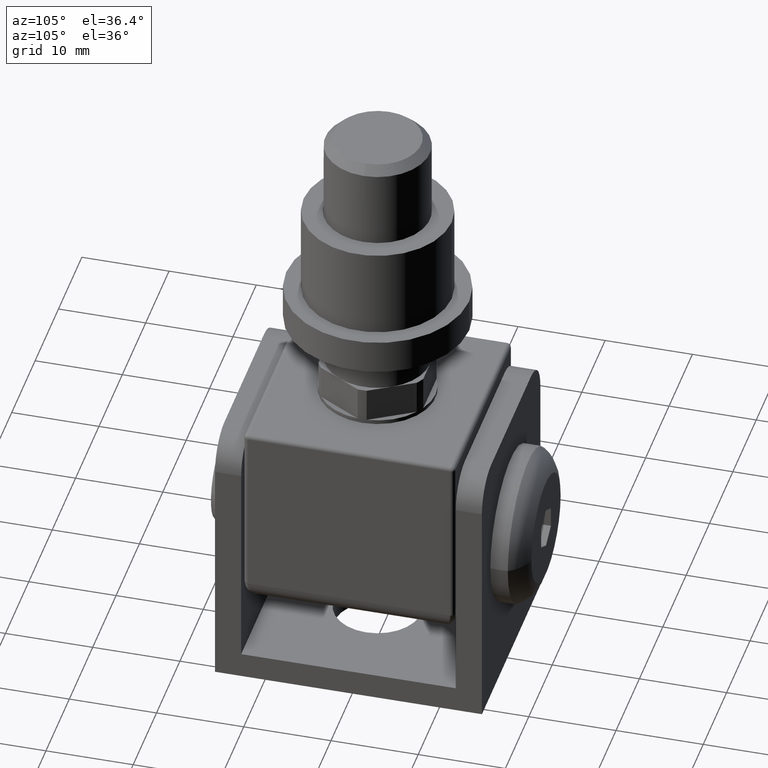
[diagram: clean part render]
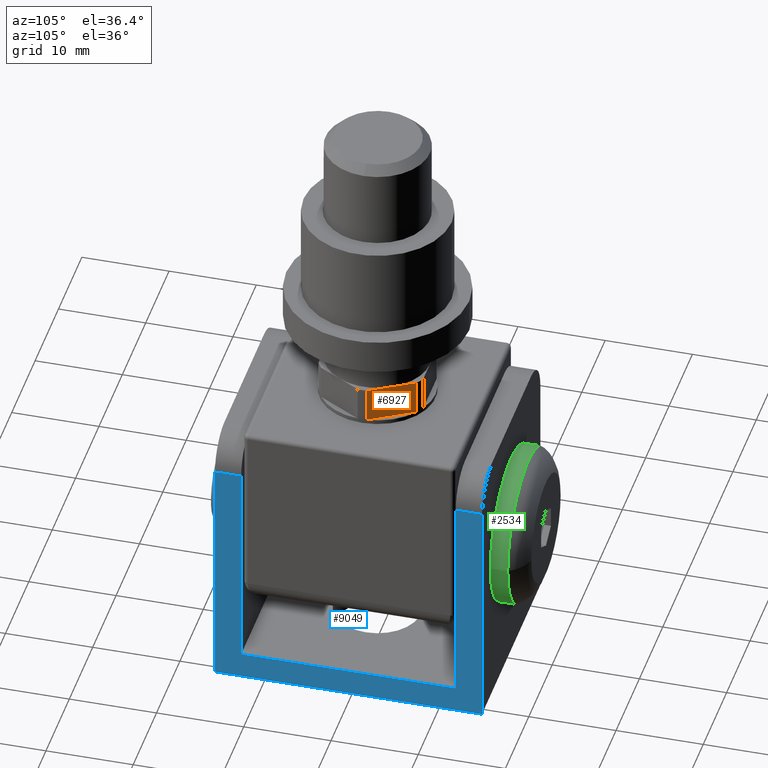
[diagram: same view with three faces highlighted in distinct colors, each labeled with its STEP entity id]
A machine part, auxiliary view with three faces highlighted in distinct colors.
Their STEP definitions:

[orange] entity #6927 — the highlighted planar face has unit normal (-0.866, -0.5, 0).
#44 = DIRECTION ( 'NONE',  ( -0.000000000000000000, -0.000000000000000000, -1.000000000000000000 ) ) ;
#452 = ORIENTED_EDGE ( 'NONE', *, *, #1431, .T. ) ;
#1431 = EDGE_CURVE ( 'NONE', #5759, #10713, #8987, .T. ) ;
#1654 = EDGE_CURVE ( 'NONE', #9571, #5188, #4895, .T. ) ;
#2066 = DIRECTION ( 'NONE',  ( -0.5000000000000002220, 0.8660254037844384856, 0.000000000000000000 ) ) ;
#2094 = CARTESIAN_POINT ( 'NONE',  ( 6.629897518600597728, 0.5166806488089423777, 15.89999999999999680 ) ) ;
#2750 = EDGE_LOOP ( 'NONE', ( #11919, #3646, #14376, #8058, #452 ) ) ;
#2832 = CARTESIAN_POINT ( 'NONE',  ( 3.762407326812664543, 5.483319351191062729, 11.90000000000000213 ) ) ;
#3067 = DIRECTION ( 'NONE',  ( -0.000000000000000000, -0.000000000000000000, -1.000000000000000000 ) ) ;
#3108 = DIRECTION ( 'NONE',  ( -0.8660254037844385966, -0.5000000000000003331, 0.000000000000000000 ) ) ;
#3255 = LINE ( 'NONE', #4348, #7144 ) ;
#3346 = EDGE_CURVE ( 'NONE', #5759, #9571, #3255, .T. ) ;
#3646 = ORIENTED_EDGE ( 'NONE', *, *, #14854, .F. ) ;
#3821 = FACE_OUTER_BOUND ( 'NONE', #2750, .T. ) ;
#3829 = AXIS2_PLACEMENT_3D ( 'NONE', #10245, #3108, #13799 ) ;
#3991 = VERTEX_POINT ( 'NONE', #2832 ) ;
#4348 = CARTESIAN_POINT ( 'NONE',  ( 6.629897518600597728, 0.5166806488089423777, 15.89999999999999680 ) ) ;
#4792 = VECTOR ( 'NONE', #6528, 1000.000000000000227 ) ;
#4895 = LINE ( 'NONE', #8333, #15267 ) ;
#5188 = VERTEX_POINT ( 'NONE', #9902 ) ;
#5447 = CARTESIAN_POINT ( 'NONE',  ( 5.196152422706631135, 3.000000000000001776, 15.89999999999999680 ) ) ;
#5759 = VERTEX_POINT ( 'NONE', #2094 ) ;
#6528 = DIRECTION ( 'NONE',  ( -0.5000000000000002220, 0.8660254037844384856, 0.000000000000000000 ) ) ;
#6927 = ADVANCED_FACE ( 'NONE', ( #3821 ), #11314, .F. ) ;
#7009 = LINE ( 'NONE', #10073, #4792 ) ;
#7144 = VECTOR ( 'NONE', #13920, 1000.000000000000227 ) ;
#8058 = ORIENTED_EDGE ( 'NONE', *, *, #3346, .F. ) ;
#8209 = CARTESIAN_POINT ( 'NONE',  ( 6.629897518600597728, 0.5166806488089408234, 11.90000000000000213 ) ) ;
#8333 = CARTESIAN_POINT ( 'NONE',  ( 6.629897518600597728, 0.5166806488089423777, 15.89999999999999680 ) ) ;
#8987 = LINE ( 'NONE', #12781, #11929 ) ;
#9571 = VERTEX_POINT ( 'NONE', #5447 ) ;
#9902 = CARTESIAN_POINT ( 'NONE',  ( 3.762407326812664987, 5.483319351191061841, 15.89999999999999680 ) ) ;
#10034 = EDGE_CURVE ( 'NONE', #10713, #3991, #7009, .T. ) ;
#10073 = CARTESIAN_POINT ( 'NONE',  ( 6.629897518600597728, 0.5166806488089423777, 11.90000000000000213 ) ) ;
#10245 = CARTESIAN_POINT ( 'NONE',  ( 6.629897518600597728, 0.5166806488089423777, 15.89999999999999680 ) ) ;
#10713 = VERTEX_POINT ( 'NONE', #8209 ) ;
#11041 = VECTOR ( 'NONE', #44, 1000.000000000000000 ) ;
#11314 = PLANE ( 'NONE',  #3829 ) ;
#11919 = ORIENTED_EDGE ( 'NONE', *, *, #10034, .T. ) ;
#11929 = VECTOR ( 'NONE', #3067, 1000.000000000000000 ) ;
#12781 = CARTESIAN_POINT ( 'NONE',  ( 6.629897518600597728, 0.5166806488089423777, 15.89999999999999680 ) ) ;
#12958 = CARTESIAN_POINT ( 'NONE',  ( 3.762407326812664987, 5.483319351191061841, 15.89999999999999680 ) ) ;
#13799 = DIRECTION ( 'NONE',  ( 0.5000000000000002220, -0.8660254037844384856, 0.000000000000000000 ) ) ;
#13920 = DIRECTION ( 'NONE',  ( -0.5000000000000002220, 0.8660254037844384856, 0.000000000000000000 ) ) ;
#14376 = ORIENTED_EDGE ( 'NONE', *, *, #1654, .F. ) ;
#14854 = EDGE_CURVE ( 'NONE', #5188, #3991, #15119, .T. ) ;
#15119 = LINE ( 'NONE', #12958, #11041 ) ;
#15267 = VECTOR ( 'NONE', #2066, 1000.000000000000227 ) ;

[blue] entity #9049 — the highlighted planar face has unit normal (-1, 0, 0).
#22 = CARTESIAN_POINT ( 'NONE',  ( 12.50000000000000000, 12.30000000000000249, 11.75000000000000355 ) ) ;
#438 = DIRECTION ( 'NONE',  ( -0.000000000000000000, -0.000000000000000000, 1.000000000000000000 ) ) ;
#570 = DIRECTION ( 'NONE',  ( -0.000000000000000000, -1.000000000000000000, -0.000000000000000000 ) ) ;
#623 = CARTESIAN_POINT ( 'NONE',  ( 12.50000000000000000, -15.29999999999999716, -15.75000000000000000 ) ) ;
#695 = DIRECTION ( 'NONE',  ( 0.000000000000000000, 0.000000000000000000, 1.000000000000000000 ) ) ;
#1082 = ORIENTED_EDGE ( 'NONE', *, *, #4791, .T. ) ;
#1148 = FACE_OUTER_BOUND ( 'NONE', #8807, .T. ) ;
#1263 = CARTESIAN_POINT ( 'NONE',  ( 12.50000000000000000, 0.000000000000000000, 11.74999999999999645 ) ) ;
#1347 = VECTOR ( 'NONE', #9046, 1000.000000000000000 ) ;
#1404 = VECTOR ( 'NONE', #438, 1000.000000000000000 ) ;
#1889 = LINE ( 'NONE', #10921, #15256 ) ;
#2367 = EDGE_CURVE ( 'NONE', #14938, #7382, #12076, .T. ) ;
#2685 = CARTESIAN_POINT ( 'NONE',  ( 12.50000000000000000, 15.30000000000000071, 15.75000000000000000 ) ) ;
#2764 = EDGE_CURVE ( 'NONE', #3357, #4862, #1889, .T. ) ;
#3076 = DIRECTION ( 'NONE',  ( -1.000000000000000000, 0.000000000000000000, 0.000000000000000000 ) ) ;
#3110 = CARTESIAN_POINT ( 'NONE',  ( 12.50000000000000000, -12.30000000000000249, -12.74999999999999822 ) ) ;
#3357 = VERTEX_POINT ( 'NONE', #22 ) ;
#3384 = CARTESIAN_POINT ( 'NONE',  ( 12.50000000000000000, -12.30000000000000249, 11.74999999999999645 ) ) ;
#3421 = VECTOR ( 'NONE', #5376, 1000.000000000000000 ) ;
#3656 = EDGE_CURVE ( 'NONE', #4862, #10868, #7606, .T. ) ;
#3776 = VECTOR ( 'NONE', #11200, 1000.000000000000000 ) ;
#3837 = ORIENTED_EDGE ( 'NONE', *, *, #6845, .T. ) ;
#3960 = DIRECTION ( 'NONE',  ( -0.000000000000000000, -0.000000000000000000, -1.000000000000000000 ) ) ;
#4608 = LINE ( 'NONE', #9906, #1404 ) ;
#4791 = EDGE_CURVE ( 'NONE', #5084, #14938, #6947, .T. ) ;
#4821 = ORIENTED_EDGE ( 'NONE', *, *, #2367, .T. ) ;
#4862 = VERTEX_POINT ( 'NONE', #6273 ) ;
#4968 = EDGE_CURVE ( 'NONE', #10403, #7278, #12890, .T. ) ;
#5032 = CARTESIAN_POINT ( 'NONE',  ( 12.50000000000000000, 15.30000000000000426, -15.75000000000000000 ) ) ;
#5084 = VERTEX_POINT ( 'NONE', #11815 ) ;
#5276 = LINE ( 'NONE', #1263, #11966 ) ;
#5376 = DIRECTION ( 'NONE',  ( 0.000000000000000000, -1.000000000000000000, 1.156482317317871133E-15 ) ) ;
#6189 = LINE ( 'NONE', #623, #1347 ) ;
#6273 = CARTESIAN_POINT ( 'NONE',  ( 12.50000000000000000, 12.30000000000000249, -12.74999999999999822 ) ) ;
#6489 = EDGE_CURVE ( 'NONE', #7382, #3357, #5276, .T. ) ;
#6490 = CARTESIAN_POINT ( 'NONE',  ( 12.50000000000000000, -12.30000000000000249, -12.74999999999999822 ) ) ;
#6845 = EDGE_CURVE ( 'NONE', #7278, #5084, #6189, .T. ) ;
#6864 = CARTESIAN_POINT ( 'NONE',  ( 12.50000000000000000, 15.30000000000000071, 11.74999999999999645 ) ) ;
#6947 = LINE ( 'NONE', #5032, #3776 ) ;
#7278 = VERTEX_POINT ( 'NONE', #7854 ) ;
#7382 = VERTEX_POINT ( 'NONE', #6864 ) ;
#7606 = LINE ( 'NONE', #3110, #9681 ) ;
#7854 = CARTESIAN_POINT ( 'NONE',  ( 12.50000000000000000, -15.30000000000000249, 11.75000000000000355 ) ) ;
#7870 = CARTESIAN_POINT ( 'NONE',  ( 12.50000000000000000, 15.30000000000000426, -15.75000000000000000 ) ) ;
#8807 = EDGE_LOOP ( 'NONE', ( #4821, #10324, #9474, #11931, #13428, #14136, #3837, #1082 ) ) ;
#8916 = CARTESIAN_POINT ( 'NONE',  ( 12.50000000000000000, 1.358866722848496945E-14, 11.74999999999998224 ) ) ;
#8950 = VECTOR ( 'NONE', #14403, 1000.000000000000000 ) ;
#9046 = DIRECTION ( 'NONE',  ( -0.000000000000000000, 1.652117596168387263E-16, -1.000000000000000000 ) ) ;
#9049 = ADVANCED_FACE ( 'NONE', ( #1148 ), #10158, .F. ) ;
#9474 = ORIENTED_EDGE ( 'NONE', *, *, #2764, .T. ) ;
#9681 = VECTOR ( 'NONE', #570, 1000.000000000000000 ) ;
#9906 = CARTESIAN_POINT ( 'NONE',  ( 12.50000000000000000, -12.30000000000000249, 15.75000000000000000 ) ) ;
#10158 = PLANE ( 'NONE',  #11893 ) ;
#10324 = ORIENTED_EDGE ( 'NONE', *, *, #6489, .T. ) ;
#10403 = VERTEX_POINT ( 'NONE', #3384 ) ;
#10652 = EDGE_CURVE ( 'NONE', #10868, #10403, #4608, .T. ) ;
#10868 = VERTEX_POINT ( 'NONE', #6490 ) ;
#10921 = CARTESIAN_POINT ( 'NONE',  ( 12.50000000000000000, 12.30000000000000249, -12.74999999999999822 ) ) ;
#11200 = DIRECTION ( 'NONE',  ( -0.000000000000000000, 1.000000000000000000, 1.133806193448893442E-16 ) ) ;
#11815 = CARTESIAN_POINT ( 'NONE',  ( 12.50000000000000000, -15.29999999999999716, -15.75000000000000000 ) ) ;
#11893 = AXIS2_PLACEMENT_3D ( 'NONE', #12576, #3076, #695 ) ;
#11931 = ORIENTED_EDGE ( 'NONE', *, *, #3656, .T. ) ;
#11966 = VECTOR ( 'NONE', #13297, 1000.000000000000000 ) ;
#12076 = LINE ( 'NONE', #2685, #8950 ) ;
#12576 = CARTESIAN_POINT ( 'NONE',  ( 12.50000000000000000, 0.000000000000000000, 0.000000000000000000 ) ) ;
#12890 = LINE ( 'NONE', #8916, #3421 ) ;
#13297 = DIRECTION ( 'NONE',  ( 0.000000000000000000, -1.000000000000000000, 0.000000000000000000 ) ) ;
#13428 = ORIENTED_EDGE ( 'NONE', *, *, #10652, .T. ) ;
#14136 = ORIENTED_EDGE ( 'NONE', *, *, #4968, .T. ) ;
#14403 = DIRECTION ( 'NONE',  ( -0.000000000000000000, -1.101411730778925171E-16, 1.000000000000000000 ) ) ;
#14938 = VERTEX_POINT ( 'NONE', #7870 ) ;
#15256 = VECTOR ( 'NONE', #3960, 1000.000000000000000 ) ;

[green] entity #2534 — the highlighted cylindrical surface (bore or boss wall) has radius 8.9 mm, axis along (-0, -1, -0).
#668 = DIRECTION ( 'NONE',  ( 0.000000000000000000, 0.000000000000000000, -1.000000000000000000 ) ) ;
#678 = CIRCLE ( 'NONE', #4055, 8.899999999999971934 ) ;
#1057 = ORIENTED_EDGE ( 'NONE', *, *, #1201, .T. ) ;
#1118 = CYLINDRICAL_SURFACE ( 'NONE', #2912, 8.899999999999971934 ) ;
#1201 = EDGE_CURVE ( 'NONE', #3019, #3019, #12710, .T. ) ;
#1800 = CARTESIAN_POINT ( 'NONE',  ( 3.252606517456513302E-15, 16.10000000000000853, 9.629649721936179265E-31 ) ) ;
#1951 = DIRECTION ( 'NONE',  ( 2.128152588547895618E-31, -1.000000000000000000, -8.011868568650901149E-32 ) ) ;
#2534 = ADVANCED_FACE ( 'NONE', ( #3370, #5960 ), #1118, .T. ) ;
#2912 = AXIS2_PLACEMENT_3D ( 'NONE', #13881, #1951, #11464 ) ;
#3019 = VERTEX_POINT ( 'NONE', #12419 ) ;
#3370 = FACE_OUTER_BOUND ( 'NONE', #4987, .T. ) ;
#4055 = AXIS2_PLACEMENT_3D ( 'NONE', #14066, #11648, #4597 ) ;
#4597 = DIRECTION ( 'NONE',  ( 0.000000000000000000, 0.000000000000000000, -1.000000000000000000 ) ) ;
#4774 = EDGE_LOOP ( 'NONE', ( #7989 ) ) ;
#4987 = EDGE_LOOP ( 'NONE', ( #1057 ) ) ;
#5960 = FACE_OUTER_BOUND ( 'NONE', #4774, .T. ) ;
#7774 = DIRECTION ( 'NONE',  ( 2.128152588547895618E-31, -1.000000000000000000, -8.011868568650901149E-32 ) ) ;
#7989 = ORIENTED_EDGE ( 'NONE', *, *, #10391, .F. ) ;
#10391 = EDGE_CURVE ( 'NONE', #11021, #11021, #678, .T. ) ;
#11021 = VERTEX_POINT ( 'NONE', #11302 ) ;
#11302 = CARTESIAN_POINT ( 'NONE',  ( 3.252606517456513302E-15, 14.10000000000000142, -8.899999999999971934 ) ) ;
#11464 = DIRECTION ( 'NONE',  ( 0.000000000000000000, 0.000000000000000000, -1.000000000000000000 ) ) ;
#11648 = DIRECTION ( 'NONE',  ( 2.128152588547895618E-31, -1.000000000000000000, -8.011868568650901149E-32 ) ) ;
#12011 = AXIS2_PLACEMENT_3D ( 'NONE', #1800, #7774, #668 ) ;
#12419 = CARTESIAN_POINT ( 'NONE',  ( 3.252606517456513302E-15, 16.10000000000000853, -8.899999999999971934 ) ) ;
#12710 = CIRCLE ( 'NONE', #12011, 8.899999999999971934 ) ;
#13881 = CARTESIAN_POINT ( 'NONE',  ( 3.252606517456513302E-15, -18.09999999999999787, -1.540743955509788682E-30 ) ) ;
#14066 = CARTESIAN_POINT ( 'NONE',  ( 3.252606517456513302E-15, 14.10000000000000142, 9.629649721936179265E-31 ) ) ;